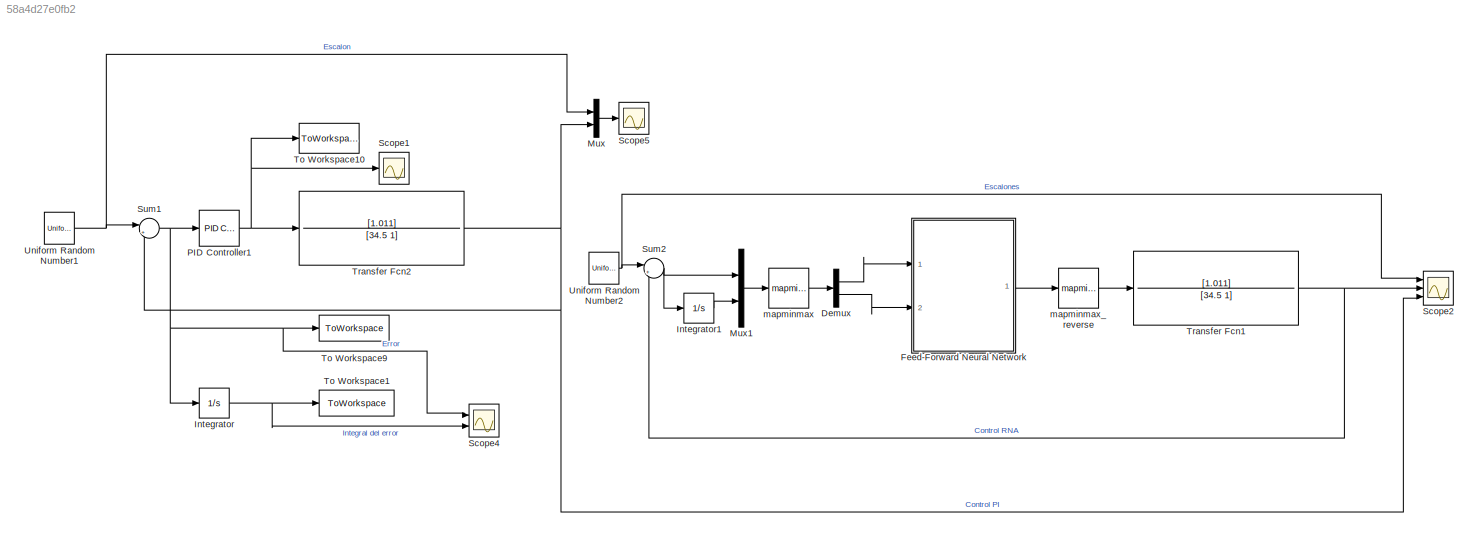
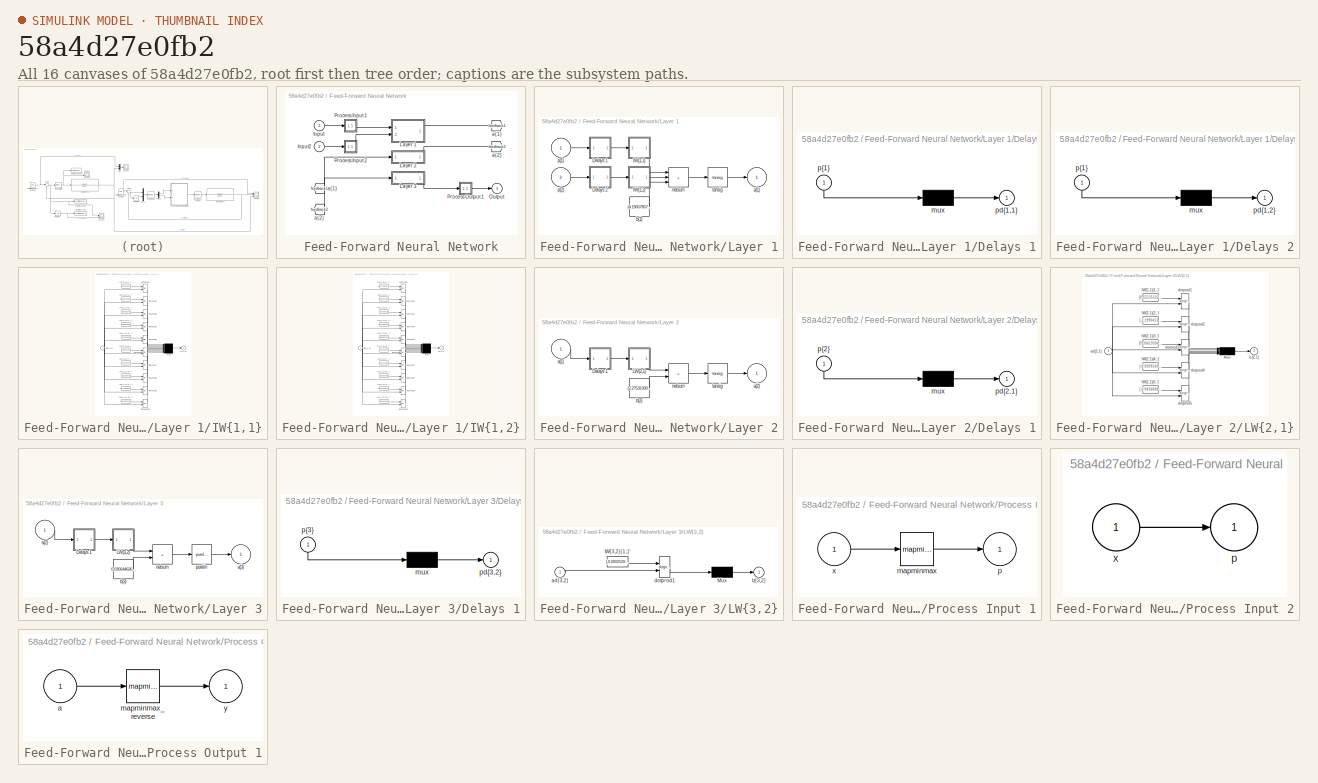
[diagram: thumbnail index - all 16 canvases of the model, root first then tree order]
MODEL slx_58a4d27e0fb2
KIND model
CONFIG AbsTol = auto
CONFIG EnableMultiTasking = off
CONFIG FixedStep = 0.1
CONFIG MaxStep = auto
CONFIG MinStep = auto
CONFIG RelTol = 1e-3
CONFIG SampleTimeConstraint = Unconstrained
CONFIG Solver = FixedStepAuto
CONFIG SolverName = FixedStepAuto
CONFIG StartTime = 0.0
CONFIG StopTime = 1000
BLOCK [Demux] Demux
  Outputs = 2
  Ports = [1, 2]
BLOCK [SubSystem] Feed-Forward Neural Network
  Ports = [2, 1]
  RequestExecContextInheritance = off
BLOCK [From] Feed-Forward Neural Network/ a{1} 
  GotoTag = feedback1
BLOCK [From] Feed-Forward Neural Network/ a{2} 
  GotoTag = feedback2
BLOCK [Inport] Feed-Forward Neural Network/Input
  PortDimensions = 1
BLOCK [Inport] Feed-Forward Neural Network/Input2
  Port = 2
  PortDimensions = 1
BLOCK [SubSystem] Feed-Forward Neural Network/Layer 1
  Ports = [2, 1]
  RequestExecContextInheritance = off
BLOCK [SubSystem] Feed-Forward Neural Network/Layer 1/Delays 1
  Ports = [1, 1]
  RequestExecContextInheritance = off
BLOCK [Mux] Feed-Forward Neural Network/Layer 1/Delays 1/mux
  Inputs = 1
  Ports = [1, 1]
BLOCK [Outport] Feed-Forward Neural Network/Layer 1/Delays 1/pd{1,1}
BLOCK [Inport] Feed-Forward Neural Network/Layer 1/Delays 1/p{1}
  NameLocation = left
  PortDimensions = 1
BLOCK [SubSystem] Feed-Forward Neural Network/Layer 1/Delays 2
  Ports = [1, 1]
  RequestExecContextInheritance = off
BLOCK [Mux] Feed-Forward Neural Network/Layer 1/Delays 2/mux
  Inputs = 1
  Ports = [1, 1]
BLOCK [Outport] Feed-Forward Neural Network/Layer 1/Delays 2/pd{1,2}
BLOCK [Inport] Feed-Forward Neural Network/Layer 1/Delays 2/p{1}
  NameLocation = left
  PortDimensions = 1
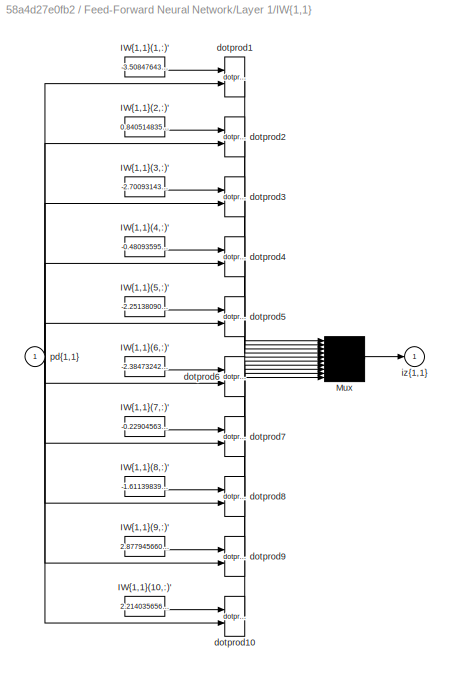
BLOCK [SubSystem] Feed-Forward Neural Network/Layer 1/IW{1,1}
  Ports = [1, 1]
  RequestExecContextInheritance = off
BLOCK [Constant] Feed-Forward Neural Network/Layer 1/IW{1,1}/IW{1,1}(1,:)'
  Value = -3.508476431920184435142573420307599008083343505859375
BLOCK [Constant] Feed-Forward Neural Network/Layer 1/IW{1,1}/IW{1,1}(10,:)'
  Value = 2.214035656119001327368778220261447131633758544921875
BLOCK [Constant] Feed-Forward Neural Network/Layer 1/IW{1,1}/IW{1,1}(2,:)'
  Value = 0.840514835862217868367451956146396696567535400390625
BLOCK [Constant] Feed-Forward Neural Network/Layer 1/IW{1,1}/IW{1,1}(3,:)'
  Value = -2.700931432801427778400693568983115255832672119140625
BLOCK [Constant] Feed-Forward Neural Network/Layer 1/IW{1,1}/IW{1,1}(4,:)'
  Value = -0.480935958631503901461456962351803667843341827392578125
BLOCK [Constant] Feed-Forward Neural Network/Layer 1/IW{1,1}/IW{1,1}(5,:)'
  Value = -2.2513809080687092745165500673465430736541748046875
BLOCK [Constant] Feed-Forward Neural Network/Layer 1/IW{1,1}/IW{1,1}(6,:)'
  Value = -2.384732421524343504160015072557143867015838623046875
BLOCK [Constant] Feed-Forward Neural Network/Layer 1/IW{1,1}/IW{1,1}(7,:)'
  Value = -0.229045639754693386436201762990094721317291259765625
BLOCK [Constant] Feed-Forward Neural Network/Layer 1/IW{1,1}/IW{1,1}(8,:)'
  Value = -1.6113983906326587725033050446654669940471649169921875
BLOCK [Constant] Feed-Forward Neural Network/Layer 1/IW{1,1}/IW{1,1}(9,:)'
  Value = 2.877945660692441176564670968218706548213958740234375
BLOCK [Mux] Feed-Forward Neural Network/Layer 1/IW{1,1}/Mux
  Inputs = 10
  Ports = [10, 1]
BLOCK [Reference] Feed-Forward Neural Network/Layer 1/IW{1,1}/dotprod1  REF=neural/Weight Functions/dotprod
  Ports = [2, 1]
  SourceBlock = neural/Weight Functions/dotprod
  SourceProductBaseCode = NN
  SourceType = DOTPROD
BLOCK [Reference] Feed-Forward Neural Network/Layer 1/IW{1,1}/dotprod10  REF=neural/Weight Functions/dotprod
  Ports = [2, 1]
  SourceBlock = neural/Weight Functions/dotprod
  SourceProductBaseCode = NN
  SourceType = DOTPROD
BLOCK [Reference] Feed-Forward Neural Network/Layer 1/IW{1,1}/dotprod2  REF=neural/Weight Functions/dotprod
  Ports = [2, 1]
  SourceBlock = neural/Weight Functions/dotprod
  SourceProductBaseCode = NN
  SourceType = DOTPROD
BLOCK [Reference] Feed-Forward Neural Network/Layer 1/IW{1,1}/dotprod3  REF=neural/Weight Functions/dotprod
  Ports = [2, 1]
  SourceBlock = neural/Weight Functions/dotprod
  SourceProductBaseCode = NN
  SourceType = DOTPROD
BLOCK [Reference] Feed-Forward Neural Network/Layer 1/IW{1,1}/dotprod4  REF=neural/Weight Functions/dotprod
  Ports = [2, 1]
  SourceBlock = neural/Weight Functions/dotprod
  SourceProductBaseCode = NN
  SourceType = DOTPROD
BLOCK [Reference] Feed-Forward Neural Network/Layer 1/IW{1,1}/dotprod5  REF=neural/Weight Functions/dotprod
  Ports = [2, 1]
  SourceBlock = neural/Weight Functions/dotprod
  SourceProductBaseCode = NN
  SourceType = DOTPROD
BLOCK [Reference] Feed-Forward Neural Network/Layer 1/IW{1,1}/dotprod6  REF=neural/Weight Functions/dotprod
  Ports = [2, 1]
  SourceBlock = neural/Weight Functions/dotprod
  SourceProductBaseCode = NN
  SourceType = DOTPROD
BLOCK [Reference] Feed-Forward Neural Network/Layer 1/IW{1,1}/dotprod7  REF=neural/Weight Functions/dotprod
  Ports = [2, 1]
  SourceBlock = neural/Weight Functions/dotprod
  SourceProductBaseCode = NN
  SourceType = DOTPROD
BLOCK [Reference] Feed-Forward Neural Network/Layer 1/IW{1,1}/dotprod8  REF=neural/Weight Functions/dotprod
  Ports = [2, 1]
  SourceBlock = neural/Weight Functions/dotprod
  SourceProductBaseCode = NN
  SourceType = DOTPROD
BLOCK [Reference] Feed-Forward Neural Network/Layer 1/IW{1,1}/dotprod9  REF=neural/Weight Functions/dotprod
  Ports = [2, 1]
  SourceBlock = neural/Weight Functions/dotprod
  SourceProductBaseCode = NN
  SourceType = DOTPROD
BLOCK [Outport] Feed-Forward Neural Network/Layer 1/IW{1,1}/iz{1,1}
BLOCK [Inport] Feed-Forward Neural Network/Layer 1/IW{1,1}/pd{1,1}
  PortDimensions = 1
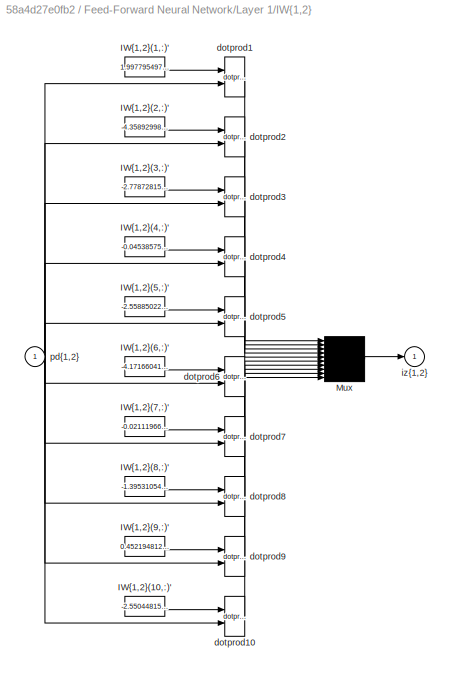
BLOCK [SubSystem] Feed-Forward Neural Network/Layer 1/IW{1,2}
  Ports = [1, 1]
  RequestExecContextInheritance = off
BLOCK [Constant] Feed-Forward Neural Network/Layer 1/IW{1,2}/IW{1,2}(1,:)'
  Value = 1.997795497339568182582070221542380750179290771484375
BLOCK [Constant] Feed-Forward Neural Network/Layer 1/IW{1,2}/IW{1,2}(10,:)'
  Value = -2.5504481515227350740815381868742406368255615234375
BLOCK [Constant] Feed-Forward Neural Network/Layer 1/IW{1,2}/IW{1,2}(2,:)'
  Value = -4.3589299896659330357806538813747465610504150390625
BLOCK [Constant] Feed-Forward Neural Network/Layer 1/IW{1,2}/IW{1,2}(3,:)'
  Value = -2.7787281516292097194309462793171405792236328125
BLOCK [Constant] Feed-Forward Neural Network/Layer 1/IW{1,2}/IW{1,2}(4,:)'
  Value = -0.045385756881579288057881882423316710628569126129150390625
BLOCK [Constant] Feed-Forward Neural Network/Layer 1/IW{1,2}/IW{1,2}(5,:)'
  Value = -2.558850221114818079826136454357765614986419677734375
BLOCK [Constant] Feed-Forward Neural Network/Layer 1/IW{1,2}/IW{1,2}(6,:)'
  Value = -4.17166041174047297346305640530772507190704345703125
BLOCK [Constant] Feed-Forward Neural Network/Layer 1/IW{1,2}/IW{1,2}(7,:)'
  Value = -0.02111966670555461000891028788828407414257526397705078125
BLOCK [Constant] Feed-Forward Neural Network/Layer 1/IW{1,2}/IW{1,2}(8,:)'
  Value = -1.39531054359343897885992191731929779052734375
BLOCK [Constant] Feed-Forward Neural Network/Layer 1/IW{1,2}/IW{1,2}(9,:)'
  Value = 0.45219481297372132733158878181711770594120025634765625
BLOCK [Mux] Feed-Forward Neural Network/Layer 1/IW{1,2}/Mux
  Inputs = 10
  Ports = [10, 1]
BLOCK [Reference] Feed-Forward Neural Network/Layer 1/IW{1,2}/dotprod1  REF=neural/Weight Functions/dotprod
  Ports = [2, 1]
  SourceBlock = neural/Weight Functions/dotprod
  SourceProductBaseCode = NN
  SourceType = DOTPROD
BLOCK [Reference] Feed-Forward Neural Network/Layer 1/IW{1,2}/dotprod10  REF=neural/Weight Functions/dotprod
  Ports = [2, 1]
  SourceBlock = neural/Weight Functions/dotprod
  SourceProductBaseCode = NN
  SourceType = DOTPROD
BLOCK [Reference] Feed-Forward Neural Network/Layer 1/IW{1,2}/dotprod2  REF=neural/Weight Functions/dotprod
  Ports = [2, 1]
  SourceBlock = neural/Weight Functions/dotprod
  SourceProductBaseCode = NN
  SourceType = DOTPROD
BLOCK [Reference] Feed-Forward Neural Network/Layer 1/IW{1,2}/dotprod3  REF=neural/Weight Functions/dotprod
  Ports = [2, 1]
  SourceBlock = neural/Weight Functions/dotprod
  SourceProductBaseCode = NN
  SourceType = DOTPROD
BLOCK [Reference] Feed-Forward Neural Network/Layer 1/IW{1,2}/dotprod4  REF=neural/Weight Functions/dotprod
  Ports = [2, 1]
  SourceBlock = neural/Weight Functions/dotprod
  SourceProductBaseCode = NN
  SourceType = DOTPROD
BLOCK [Reference] Feed-Forward Neural Network/Layer 1/IW{1,2}/dotprod5  REF=neural/Weight Functions/dotprod
  Ports = [2, 1]
  SourceBlock = neural/Weight Functions/dotprod
  SourceProductBaseCode = NN
  SourceType = DOTPROD
BLOCK [Reference] Feed-Forward Neural Network/Layer 1/IW{1,2}/dotprod6  REF=neural/Weight Functions/dotprod
  Ports = [2, 1]
  SourceBlock = neural/Weight Functions/dotprod
  SourceProductBaseCode = NN
  SourceType = DOTPROD
BLOCK [Reference] Feed-Forward Neural Network/Layer 1/IW{1,2}/dotprod7  REF=neural/Weight Functions/dotprod
  Ports = [2, 1]
  SourceBlock = neural/Weight Functions/dotprod
  SourceProductBaseCode = NN
  SourceType = DOTPROD
BLOCK [Reference] Feed-Forward Neural Network/Layer 1/IW{1,2}/dotprod8  REF=neural/Weight Functions/dotprod
  Ports = [2, 1]
  SourceBlock = neural/Weight Functions/dotprod
  SourceProductBaseCode = NN
  SourceType = DOTPROD
BLOCK [Reference] Feed-Forward Neural Network/Layer 1/IW{1,2}/dotprod9  REF=neural/Weight Functions/dotprod
  Ports = [2, 1]
  SourceBlock = neural/Weight Functions/dotprod
  SourceProductBaseCode = NN
  SourceType = DOTPROD
BLOCK [Outport] Feed-Forward Neural Network/Layer 1/IW{1,2}/iz{1,2}
BLOCK [Inport] Feed-Forward Neural Network/Layer 1/IW{1,2}/pd{1,2}
  PortDimensions = 1
BLOCK [Outport] Feed-Forward Neural Network/Layer 1/a{1}
  InitialOutput = [0;0;0;0;0;0;0;0;0;0]
BLOCK [Constant] Feed-Forward Neural Network/Layer 1/b{1}
  Value = [4.19057857569400571406958988518454134464263916015625;-3.972122577060976045260076716658659279346466064453125;1.7995169063904794537478437632671557366847991943359375;1.18502047244197594721981658949516713619232177734375;0.36150717514021846188398967569810338318347930908203125;1.1659574842138360484256054405705071985721588134765625;-0.894612116036243687489104559062980115413665771484375;-1.17155391073303...<+140ch>
BLOCK [Sum] Feed-Forward Neural Network/Layer 1/netsum
  IconShape = rectangular
  InputSameDT = on
  Inputs = 3
  OutDataTypeStr = Inherit: Same as first input
  Ports = [3, 1]
  SaturateOnIntegerOverflow = on
BLOCK [Inport] Feed-Forward Neural Network/Layer 1/p{1}
  PortDimensions = 1
BLOCK [Inport] Feed-Forward Neural Network/Layer 1/p{2}
  Port = 2
  PortDimensions = 1
BLOCK [Reference] Feed-Forward Neural Network/Layer 1/tansig  REF=neural/Transfer Functions/tansig
  Ports = [1, 1]
  SourceBlock = neural/Transfer Functions/tansig
  SourceProductBaseCode = NN
  SourceType = TANSIG
BLOCK [SubSystem] Feed-Forward Neural Network/Layer 2
  Ports = [1, 1]
  RequestExecContextInheritance = off
BLOCK [SubSystem] Feed-Forward Neural Network/Layer 2/Delays 1
  Ports = [1, 1]
  RequestExecContextInheritance = off
BLOCK [Mux] Feed-Forward Neural Network/Layer 2/Delays 1/mux
  Inputs = 1
  Ports = [1, 1]
BLOCK [Outport] Feed-Forward Neural Network/Layer 2/Delays 1/pd{2,1}
BLOCK [Inport] Feed-Forward Neural Network/Layer 2/Delays 1/p{2}
  NameLocation = left
  PortDimensions = 10
BLOCK [SubSystem] Feed-Forward Neural Network/Layer 2/LW{2,1}
  Ports = [1, 1]
  RequestExecContextInheritance = off
BLOCK [Constant] Feed-Forward Neural Network/Layer 2/LW{2,1}/IW{2,1}(1,:)'
  Value = [0.55535102160664495674069485176005400717258453369140625;0.45641645123717766718840493922471068799495697021484375;-0.5624661320449886314776222207001410424709320068359375;-1.540615594300232427116270628175698220729827880859375;-0.53292616971427253513837740683811716735363006591796875;-0.13573185617314720285975226943264715373516082763671875;-0.09423213574798443292745986354930209927260875701904296875;-0...<+169ch>
BLOCK [Constant] Feed-Forward Neural Network/Layer 2/LW{2,1}/IW{2,1}(2,:)'
  Value = [-1.1990451331347273811189779735286720097064971923828125;0.10131954551651085882912894930996117182075977325439453125;0.8767308311953498911606175170163623988628387451171875;-0.850169935927217235160924246883951127529144287109375;-0.177086098229539412596267311528208665549755096435546875;0.05391370620235093336081177994856261648237705230712890625;0.2878880787415105668713977138395421206951141357421875;-0...<+174ch>
BLOCK [Constant] Feed-Forward Neural Network/Layer 2/LW{2,1}/IW{2,1}(3,:)'
  Value = [0.304193947607173498237642661479185335338115692138671875;0.041681356855345581824412448668226716108620166778564453125;-0.242438945006539174897852717549540102481842041015625;-0.5456325700234800901711196274845860898494720458984375;-0.1841266608112542002562150855737854726612567901611328125;-0.0174890047951736689324508944309854996390640735626220703125;-0.38136603666054380568084525293670594692230224609...<+170ch>
BLOCK [Constant] Feed-Forward Neural Network/Layer 2/LW{2,1}/IW{2,1}(4,:)'
  Value = [-0.000954013024956334933397716913106023639556951820850372314453125;-2.32020243145966879676732330661792502723983488976955413818359375e-05;0.0002781869235858428781281437291994507177150808274745941162109375;-0.578706050110341596592888890882022678852081298828125;0.00018843804391659231436788324298703400927479378879070281982421875;4.22863407142418080107704181358485584496520459651947021484375e-05;-1.898...<+243ch>
BLOCK [Constant] Feed-Forward Neural Network/Layer 2/LW{2,1}/IW{2,1}(5,:)'
  Value = [-0.94368488313814291590375660234712995588779449462890625;0.0150610294496541126385569242529527400620281696319580078125;-0.71816348692667897335439874950679950416088104248046875;-0.07367612818496256654743348235570010729134082794189453125;-0.4379637747137572478806077924673445522785186767578125;-0.4332714878167671646025382869993336498737335205078125;0.80837872420107337312344952806597575545310974121093...<+180ch>
BLOCK [Mux] Feed-Forward Neural Network/Layer 2/LW{2,1}/Mux
  Inputs = 5
  Ports = [5, 1]
BLOCK [Inport] Feed-Forward Neural Network/Layer 2/LW{2,1}/ad{2,1}
  PortDimensions = 10
BLOCK [Reference] Feed-Forward Neural Network/Layer 2/LW{2,1}/dotprod1  REF=neural/Weight Functions/dotprod
  Ports = [2, 1]
  SourceBlock = neural/Weight Functions/dotprod
  SourceProductBaseCode = NN
  SourceType = DOTPROD
BLOCK [Reference] Feed-Forward Neural Network/Layer 2/LW{2,1}/dotprod2  REF=neural/Weight Functions/dotprod
  Ports = [2, 1]
  SourceBlock = neural/Weight Functions/dotprod
  SourceProductBaseCode = NN
  SourceType = DOTPROD
BLOCK [Reference] Feed-Forward Neural Network/Layer 2/LW{2,1}/dotprod3  REF=neural/Weight Functions/dotprod
  Ports = [2, 1]
  SourceBlock = neural/Weight Functions/dotprod
  SourceProductBaseCode = NN
  SourceType = DOTPROD
BLOCK [Reference] Feed-Forward Neural Network/Layer 2/LW{2,1}/dotprod4  REF=neural/Weight Functions/dotprod
  Ports = [2, 1]
  SourceBlock = neural/Weight Functions/dotprod
  SourceProductBaseCode = NN
  SourceType = DOTPROD
BLOCK [Reference] Feed-Forward Neural Network/Layer 2/LW{2,1}/dotprod5  REF=neural/Weight Functions/dotprod
  Ports = [2, 1]
  SourceBlock = neural/Weight Functions/dotprod
  SourceProductBaseCode = NN
  SourceType = DOTPROD
BLOCK [Outport] Feed-Forward Neural Network/Layer 2/LW{2,1}/lz{2,1}
BLOCK [Inport] Feed-Forward Neural Network/Layer 2/a{1} 
  PortDimensions = 10
BLOCK [Outport] Feed-Forward Neural Network/Layer 2/a{2}
  InitialOutput = [0;0;0;0;0]
BLOCK [Constant] Feed-Forward Neural Network/Layer 2/b{2}
  Value = [2.27531300371063505139090921147726476192474365234375;0.456862543232915474522570775661733932793140411376953125;0.445251593997662842294715801472193561494350433349609375;-0.8894085911825959644971817397163249552249908447265625;-1.90960584070917516186227658181451261043548583984375]
BLOCK [Sum] Feed-Forward Neural Network/Layer 2/netsum
  IconShape = rectangular
  InputSameDT = on
  Inputs = 2
  OutDataTypeStr = Inherit: Same as first input
  Ports = [2, 1]
  SaturateOnIntegerOverflow = on
BLOCK [Reference] Feed-Forward Neural Network/Layer 2/tansig  REF=neural/Transfer Functions/tansig
  Ports = [1, 1]
  SourceBlock = neural/Transfer Functions/tansig
  SourceProductBaseCode = NN
  SourceType = TANSIG
BLOCK [SubSystem] Feed-Forward Neural Network/Layer 3
  Ports = [1, 1]
  RequestExecContextInheritance = off
BLOCK [SubSystem] Feed-Forward Neural Network/Layer 3/Delays 1
  Ports = [1, 1]
  RequestExecContextInheritance = off
BLOCK [Mux] Feed-Forward Neural Network/Layer 3/Delays 1/mux
  Inputs = 1
  Ports = [1, 1]
BLOCK [Outport] Feed-Forward Neural Network/Layer 3/Delays 1/pd{3,2}
BLOCK [Inport] Feed-Forward Neural Network/Layer 3/Delays 1/p{3}
  NameLocation = left
  PortDimensions = 5
BLOCK [SubSystem] Feed-Forward Neural Network/Layer 3/LW{3,2}
  Ports = [1, 1]
  RequestExecContextInheritance = off
BLOCK [Constant] Feed-Forward Neural Network/Layer 3/LW{3,2}/IW{3,2}(1,:)'
  Value = [-0.0002529588510659234773698955667242671552230603992938995361328125;-0.001261397000539167707888754677014730987139046192169189453125;0.055966849843747022708040361749226576648652553558349609375;3.52836074955877876391241443343460559844970703125;0.0678782961544512064566703202217468060553073883056640625]
BLOCK [Mux] Feed-Forward Neural Network/Layer 3/LW{3,2}/Mux
  Inputs = 1
  Ports = [1, 1]
BLOCK [Inport] Feed-Forward Neural Network/Layer 3/LW{3,2}/ad{3,2}
  PortDimensions = 5
BLOCK [Reference] Feed-Forward Neural Network/Layer 3/LW{3,2}/dotprod1  REF=neural/Weight Functions/dotprod
  Ports = [2, 1]
  SourceBlock = neural/Weight Functions/dotprod
  SourceProductBaseCode = NN
  SourceType = DOTPROD
BLOCK [Outport] Feed-Forward Neural Network/Layer 3/LW{3,2}/lz{3,2}
BLOCK [Inport] Feed-Forward Neural Network/Layer 3/a{2} 
  PortDimensions = 5
BLOCK [Outport] Feed-Forward Neural Network/Layer 3/a{3}
  InitialOutput = 0
BLOCK [Constant] Feed-Forward Neural Network/Layer 3/b{3}
  Value = 0.030644626488173710987528153282255516387522220611572265625
BLOCK [Sum] Feed-Forward Neural Network/Layer 3/netsum
  IconShape = rectangular
  InputSameDT = on
  Inputs = 2
  OutDataTypeStr = Inherit: Same as first input
  Ports = [2, 1]
  SaturateOnIntegerOverflow = on
BLOCK [Reference] Feed-Forward Neural Network/Layer 3/purelin  REF=neural/Transfer Functions/purelin
  Ports = [1, 1]
  SourceBlock = neural/Transfer Functions/purelin
  SourceProductBaseCode = NN
  SourceType = PURELIN
BLOCK [Outport] Feed-Forward Neural Network/Output
  InitialOutput = 0
BLOCK [SubSystem] Feed-Forward Neural Network/Process Input 1
  Ports = [1, 1]
  RequestExecContextInheritance = off
BLOCK [Reference] Feed-Forward Neural Network/Process Input 1/mapminmax  REF=neural/Processing Functions/mapminmax
  Ports = [1, 1]
  SourceBlock = neural/Processing Functions/mapminmax
  SourceProductBaseCode = NN
  SourceType = MAPMINMAX Preprocess
BLOCK [Outport] Feed-Forward Neural Network/Process Input 1/p
  PortDimensions = 1
BLOCK [Inport] Feed-Forward Neural Network/Process Input 1/x
  PortDimensions = 1
BLOCK [SubSystem] Feed-Forward Neural Network/Process Input 2
  Ports = [1, 1]
  RequestExecContextInheritance = off
BLOCK [Outport] Feed-Forward Neural Network/Process Input 2/p
  PortDimensions = 1
BLOCK [Inport] Feed-Forward Neural Network/Process Input 2/x
  PortDimensions = 1
BLOCK [SubSystem] Feed-Forward Neural Network/Process Output 1
  Ports = [1, 1]
  RequestExecContextInheritance = off
BLOCK [Inport] Feed-Forward Neural Network/Process Output 1/a
  PortDimensions = 1
BLOCK [Reference] Feed-Forward Neural Network/Process Output 1/mapminmax_reverse  REF=neural/Processing Functions/mapminmax_reverse
  Ports = [1, 1]
  SourceBlock = neural/Processing Functions/mapminmax_reverse
  SourceProductBaseCode = NN
  SourceType = MAPMINMAX Reverse Process
BLOCK [Outport] Feed-Forward Neural Network/Process Output 1/y
  PortDimensions = 1
BLOCK [Goto] Feed-Forward Neural Network/a{1}
  GotoTag = feedback1
BLOCK [Goto] Feed-Forward Neural Network/a{2}
  GotoTag = feedback2
BLOCK [Integrator] Integrator
  Ports = [1, 1]
BLOCK [Integrator] Integrator1
  Ports = [1, 1]
BLOCK [Mux] Mux
  DisplayOption = bar
  Inputs = 2
  Ports = [2, 1]
BLOCK [Mux] Mux1
  DisplayOption = bar
  Inputs = 2
  Ports = [2, 1]
BLOCK [Reference] PID Controller1  REF=simulink/Continuous/PID Controller
  Ports = [1, 1]
  SourceBlock = simulink/Continuous/PID Controller
  SourceProductBaseCode = SL
  SourceType = PID 1dof
BLOCK [Scope] Scope1
  Floating = off
  NumInputPorts = 1
  Ports = [1]
  ScopeSpecificationString = Simulink.scopes.TimeScopeBlockCfg('CurrentConfiguration', extmgr.ConfigurationSet(extmgr.Configuration('Core','General UI',true),extmgr.Configuration('Core','Source UI',true),extmgr.Configuration('Sources','WiredSimulink',true,'DataLoggingVariableName','ScopeData2'),extmgr.Configuration('Visuals','Time Domain',true,'SerializedDisplays',{struct('MinYLimReal','-137.84663','MaxYLimReal','233.80539','...<+1403ch>
BLOCK [Scope] Scope2
  Floating = off
  NumInputPorts = 3
  Ports = [3]
  ScopeSpecificationString = Simulink.scopes.TimeScopeBlockCfg('CurrentConfiguration', extmgr.ConfigurationSet(extmgr.Configuration('Core','General UI',true),extmgr.Configuration('Core','Source UI',true),extmgr.Configuration('Sources','WiredSimulink',true,'DataLoggingVariableName','ScopeData3'),extmgr.Configuration('Visuals','Time Domain',true,'SerializedDisplays',{struct('MinYLimReal','-7.2399','MaxYLimReal','53.40615','YLab...<+1563ch>
BLOCK [Scope] Scope4
  Floating = off
  NumInputPorts = 2
  Ports = [2]
  ScopeSpecificationString = Simulink.scopes.TimeScopeBlockCfg('CurrentConfiguration', extmgr.ConfigurationSet(extmgr.Configuration('Core','General UI',true),extmgr.Configuration('Core','Source UI',true),extmgr.Configuration('Sources','WiredSimulink',true,'DataLoggingVariableName','ScopeData1'),extmgr.Configuration('Visuals','Time Domain',true,'SerializedDisplays',{struct('MinYLimReal','-47.36121','MaxYLimReal','44.37411','YL...<+1461ch>
BLOCK [Scope] Scope5
  Floating = off
  NumInputPorts = 1
  Ports = [1]
  ScopeSpecificationString = Simulink.scopes.TimeScopeBlockCfg('CurrentConfiguration', extmgr.ConfigurationSet(extmgr.Configuration('Core','General UI',true),extmgr.Configuration('Core','Source UI',true),extmgr.Configuration('Sources','WiredSimulink',true),extmgr.Configuration('Visuals','Time Domain',true,'SerializedDisplays',{struct('MinYLimReal','-5.81391','MaxYLimReal','55.8083','YLabelReal','','MinYLimMag','0.00000','MaxY...<+1434ch>
BLOCK [Sum] Sum1
  Inputs = |+-
  Ports = [2, 1]
BLOCK [Sum] Sum2
  Inputs = |+-
  Ports = [2, 1]
BLOCK [ToWorkspace] To Workspace1
  MaxDataPoints = inf
  Ports = [1]
  SampleTime = 0.1
  VariableName = Integral_e
BLOCK [ToWorkspace] To Workspace10
  MaxDataPoints = inf
  Ports = [1]
  SampleTime = 0.1
  VariableName = SalidaPI
BLOCK [ToWorkspace] To Workspace9
  MaxDataPoints = inf
  Ports = [1]
  SampleTime = 0.1
  VariableName = error_control
BLOCK [TransferFcn] Transfer Fcn1
  ContinuousStateAttributes = 'es'
  Denominator = [34.5 1]
  Numerator = [1.011]
BLOCK [TransferFcn] Transfer Fcn2
  ContinuousStateAttributes = 'es'
  Denominator = [34.5 1]
  Numerator = [1.011]
BLOCK [UniformRandomNumber] Uniform Random Number1
  Maximum = 50
  Minimum = 0
  SampleTime = 50
BLOCK [UniformRandomNumber] Uniform Random Number2
  Maximum = 50
  Minimum = 0
  SampleTime = 50
BLOCK [Reference] mapminmax  REF=neural/Processing Functions/mapminmax
  Ports = [1, 1]
  SourceBlock = neural/Processing Functions/mapminmax
  SourceProductBaseCode = NN
  SourceType = MAPMINMAX Preprocess
BLOCK [Reference] mapminmax_reverse  REF=neural/Processing Functions/mapminmax_reverse
  Ports = [1, 1]
  SourceBlock = neural/Processing Functions/mapminmax_reverse
  SourceProductBaseCode = NN
  SourceType = MAPMINMAX Reverse Process
LINE Demux:1 -> Feed-Forward Neural Network:1
LINE Demux:2 -> Feed-Forward Neural Network:2
LINE Feed-Forward Neural Network/ a{1} :1 -> Feed-Forward Neural Network/Layer 2:1
LINE Feed-Forward Neural Network/ a{2} :1 -> Feed-Forward Neural Network/Layer 3:1
LINE Feed-Forward Neural Network/Input2:1 -> Feed-Forward Neural Network/Process Input 2:1
LINE Feed-Forward Neural Network/Input:1 -> Feed-Forward Neural Network/Process Input 1:1
LINE Feed-Forward Neural Network/Layer 1/Delays 1/mux:1 -> Feed-Forward Neural Network/Layer 1/Delays 1/pd{1,1}:1
LINE Feed-Forward Neural Network/Layer 1/Delays 1/p{1}:1 -> Feed-Forward Neural Network/Layer 1/Delays 1/mux:1
LINE Feed-Forward Neural Network/Layer 1/Delays 1:1 -> Feed-Forward Neural Network/Layer 1/IW{1,1}:1
LINE Feed-Forward Neural Network/Layer 1/Delays 2/mux:1 -> Feed-Forward Neural Network/Layer 1/Delays 2/pd{1,2}:1
LINE Feed-Forward Neural Network/Layer 1/Delays 2/p{1}:1 -> Feed-Forward Neural Network/Layer 1/Delays 2/mux:1
LINE Feed-Forward Neural Network/Layer 1/Delays 2:1 -> Feed-Forward Neural Network/Layer 1/IW{1,2}:1
LINE Feed-Forward Neural Network/Layer 1/IW{1,1}/IW{1,1}(1,:)':1 -> Feed-Forward Neural Network/Layer 1/IW{1,1}/dotprod1:1
LINE Feed-Forward Neural Network/Layer 1/IW{1,1}/IW{1,1}(10,:)':1 -> Feed-Forward Neural Network/Layer 1/IW{1,1}/dotprod10:1
LINE Feed-Forward Neural Network/Layer 1/IW{1,1}/IW{1,1}(2,:)':1 -> Feed-Forward Neural Network/Layer 1/IW{1,1}/dotprod2:1
LINE Feed-Forward Neural Network/Layer 1/IW{1,1}/IW{1,1}(3,:)':1 -> Feed-Forward Neural Network/Layer 1/IW{1,1}/dotprod3:1
LINE Feed-Forward Neural Network/Layer 1/IW{1,1}/IW{1,1}(4,:)':1 -> Feed-Forward Neural Network/Layer 1/IW{1,1}/dotprod4:1
LINE Feed-Forward Neural Network/Layer 1/IW{1,1}/IW{1,1}(5,:)':1 -> Feed-Forward Neural Network/Layer 1/IW{1,1}/dotprod5:1
LINE Feed-Forward Neural Network/Layer 1/IW{1,1}/IW{1,1}(6,:)':1 -> Feed-Forward Neural Network/Layer 1/IW{1,1}/dotprod6:1
LINE Feed-Forward Neural Network/Layer 1/IW{1,1}/IW{1,1}(7,:)':1 -> Feed-Forward Neural Network/Layer 1/IW{1,1}/dotprod7:1
LINE Feed-Forward Neural Network/Layer 1/IW{1,1}/IW{1,1}(8,:)':1 -> Feed-Forward Neural Network/Layer 1/IW{1,1}/dotprod8:1
LINE Feed-Forward Neural Network/Layer 1/IW{1,1}/IW{1,1}(9,:)':1 -> Feed-Forward Neural Network/Layer 1/IW{1,1}/dotprod9:1
LINE Feed-Forward Neural Network/Layer 1/IW{1,1}/Mux:1 -> Feed-Forward Neural Network/Layer 1/IW{1,1}/iz{1,1}:1
LINE Feed-Forward Neural Network/Layer 1/IW{1,1}/dotprod10:1 -> Feed-Forward Neural Network/Layer 1/IW{1,1}/Mux:10
LINE Feed-Forward Neural Network/Layer 1/IW{1,1}/dotprod1:1 -> Feed-Forward Neural Network/Layer 1/IW{1,1}/Mux:1
LINE Feed-Forward Neural Network/Layer 1/IW{1,1}/dotprod2:1 -> Feed-Forward Neural Network/Layer 1/IW{1,1}/Mux:2
LINE Feed-Forward Neural Network/Layer 1/IW{1,1}/dotprod3:1 -> Feed-Forward Neural Network/Layer 1/IW{1,1}/Mux:3
LINE Feed-Forward Neural Network/Layer 1/IW{1,1}/dotprod4:1 -> Feed-Forward Neural Network/Layer 1/IW{1,1}/Mux:4
LINE Feed-Forward Neural Network/Layer 1/IW{1,1}/dotprod5:1 -> Feed-Forward Neural Network/Layer 1/IW{1,1}/Mux:5
LINE Feed-Forward Neural Network/Layer 1/IW{1,1}/dotprod6:1 -> Feed-Forward Neural Network/Layer 1/IW{1,1}/Mux:6
LINE Feed-Forward Neural Network/Layer 1/IW{1,1}/dotprod7:1 -> Feed-Forward Neural Network/Layer 1/IW{1,1}/Mux:7
LINE Feed-Forward Neural Network/Layer 1/IW{1,1}/dotprod8:1 -> Feed-Forward Neural Network/Layer 1/IW{1,1}/Mux:8
LINE Feed-Forward Neural Network/Layer 1/IW{1,1}/dotprod9:1 -> Feed-Forward Neural Network/Layer 1/IW{1,1}/Mux:9
NET Feed-Forward Neural Network/Layer 1/IW{1,1}/pd{1,1}:1 -> Feed-Forward Neural Network/Layer 1/IW{1,1}/dotprod10:2, Feed-Forward Neural Network/Layer 1/IW{1,1}/dotprod1:2, Feed-Forward Neural Network/Layer 1/IW{1,1}/dotprod2:2, Feed-Forward Neural Network/Layer 1/IW{1,1}/dotprod3:2, Feed-Forward Neural Network/Layer 1/IW{1,1}/dotprod4:2, Feed-Forward Neural Network/Layer 1/IW{1,1}/dotprod5:2, Feed-Forward Neural Network/Layer 1/IW{1,1}/dotprod6:2, Feed-Forward Neural Network/Layer 1/IW{1,1}/dotprod7:2, Feed-Forward Neural Network/Layer 1/IW{1,1}/dotprod8:2, Feed-Forward Neural Network/Layer 1/IW{1,1}/dotprod9:2
LINE Feed-Forward Neural Network/Layer 1/IW{1,1}:1 -> Feed-Forward Neural Network/Layer 1/netsum:1
LINE Feed-Forward Neural Network/Layer 1/IW{1,2}/IW{1,2}(1,:)':1 -> Feed-Forward Neural Network/Layer 1/IW{1,2}/dotprod1:1
LINE Feed-Forward Neural Network/Layer 1/IW{1,2}/IW{1,2}(10,:)':1 -> Feed-Forward Neural Network/Layer 1/IW{1,2}/dotprod10:1
LINE Feed-Forward Neural Network/Layer 1/IW{1,2}/IW{1,2}(2,:)':1 -> Feed-Forward Neural Network/Layer 1/IW{1,2}/dotprod2:1
LINE Feed-Forward Neural Network/Layer 1/IW{1,2}/IW{1,2}(3,:)':1 -> Feed-Forward Neural Network/Layer 1/IW{1,2}/dotprod3:1
LINE Feed-Forward Neural Network/Layer 1/IW{1,2}/IW{1,2}(4,:)':1 -> Feed-Forward Neural Network/Layer 1/IW{1,2}/dotprod4:1
LINE Feed-Forward Neural Network/Layer 1/IW{1,2}/IW{1,2}(5,:)':1 -> Feed-Forward Neural Network/Layer 1/IW{1,2}/dotprod5:1
LINE Feed-Forward Neural Network/Layer 1/IW{1,2}/IW{1,2}(6,:)':1 -> Feed-Forward Neural Network/Layer 1/IW{1,2}/dotprod6:1
LINE Feed-Forward Neural Network/Layer 1/IW{1,2}/IW{1,2}(7,:)':1 -> Feed-Forward Neural Network/Layer 1/IW{1,2}/dotprod7:1
LINE Feed-Forward Neural Network/Layer 1/IW{1,2}/IW{1,2}(8,:)':1 -> Feed-Forward Neural Network/Layer 1/IW{1,2}/dotprod8:1
LINE Feed-Forward Neural Network/Layer 1/IW{1,2}/IW{1,2}(9,:)':1 -> Feed-Forward Neural Network/Layer 1/IW{1,2}/dotprod9:1
LINE Feed-Forward Neural Network/Layer 1/IW{1,2}/Mux:1 -> Feed-Forward Neural Network/Layer 1/IW{1,2}/iz{1,2}:1
LINE Feed-Forward Neural Network/Layer 1/IW{1,2}/dotprod10:1 -> Feed-Forward Neural Network/Layer 1/IW{1,2}/Mux:10
LINE Feed-Forward Neural Network/Layer 1/IW{1,2}/dotprod1:1 -> Feed-Forward Neural Network/Layer 1/IW{1,2}/Mux:1
LINE Feed-Forward Neural Network/Layer 1/IW{1,2}/dotprod2:1 -> Feed-Forward Neural Network/Layer 1/IW{1,2}/Mux:2
LINE Feed-Forward Neural Network/Layer 1/IW{1,2}/dotprod3:1 -> Feed-Forward Neural Network/Layer 1/IW{1,2}/Mux:3
LINE Feed-Forward Neural Network/Layer 1/IW{1,2}/dotprod4:1 -> Feed-Forward Neural Network/Layer 1/IW{1,2}/Mux:4
LINE Feed-Forward Neural Network/Layer 1/IW{1,2}/dotprod5:1 -> Feed-Forward Neural Network/Layer 1/IW{1,2}/Mux:5
LINE Feed-Forward Neural Network/Layer 1/IW{1,2}/dotprod6:1 -> Feed-Forward Neural Network/Layer 1/IW{1,2}/Mux:6
LINE Feed-Forward Neural Network/Layer 1/IW{1,2}/dotprod7:1 -> Feed-Forward Neural Network/Layer 1/IW{1,2}/Mux:7
LINE Feed-Forward Neural Network/Layer 1/IW{1,2}/dotprod8:1 -> Feed-Forward Neural Network/Layer 1/IW{1,2}/Mux:8
LINE Feed-Forward Neural Network/Layer 1/IW{1,2}/dotprod9:1 -> Feed-Forward Neural Network/Layer 1/IW{1,2}/Mux:9
NET Feed-Forward Neural Network/Layer 1/IW{1,2}/pd{1,2}:1 -> Feed-Forward Neural Network/Layer 1/IW{1,2}/dotprod10:2, Feed-Forward Neural Network/Layer 1/IW{1,2}/dotprod1:2, Feed-Forward Neural Network/Layer 1/IW{1,2}/dotprod2:2, Feed-Forward Neural Network/Layer 1/IW{1,2}/dotprod3:2, Feed-Forward Neural Network/Layer 1/IW{1,2}/dotprod4:2, Feed-Forward Neural Network/Layer 1/IW{1,2}/dotprod5:2, Feed-Forward Neural Network/Layer 1/IW{1,2}/dotprod6:2, Feed-Forward Neural Network/Layer 1/IW{1,2}/dotprod7:2, Feed-Forward Neural Network/Layer 1/IW{1,2}/dotprod8:2, Feed-Forward Neural Network/Layer 1/IW{1,2}/dotprod9:2
LINE Feed-Forward Neural Network/Layer 1/IW{1,2}:1 -> Feed-Forward Neural Network/Layer 1/netsum:2
LINE Feed-Forward Neural Network/Layer 1/b{1}:1 -> Feed-Forward Neural Network/Layer 1/netsum:3
LINE Feed-Forward Neural Network/Layer 1/netsum:1 -> Feed-Forward Neural Network/Layer 1/tansig:1
LINE Feed-Forward Neural Network/Layer 1/p{1}:1 -> Feed-Forward Neural Network/Layer 1/Delays 1:1
LINE Feed-Forward Neural Network/Layer 1/p{2}:1 -> Feed-Forward Neural Network/Layer 1/Delays 2:1
LINE Feed-Forward Neural Network/Layer 1/tansig:1 -> Feed-Forward Neural Network/Layer 1/a{1}:1
LINE Feed-Forward Neural Network/Layer 1:1 -> Feed-Forward Neural Network/a{1}:1
LINE Feed-Forward Neural Network/Layer 2/Delays 1/mux:1 -> Feed-Forward Neural Network/Layer 2/Delays 1/pd{2,1}:1
LINE Feed-Forward Neural Network/Layer 2/Delays 1/p{2}:1 -> Feed-Forward Neural Network/Layer 2/Delays 1/mux:1
LINE Feed-Forward Neural Network/Layer 2/Delays 1:1 -> Feed-Forward Neural Network/Layer 2/LW{2,1}:1
LINE Feed-Forward Neural Network/Layer 2/LW{2,1}/IW{2,1}(1,:)':1 -> Feed-Forward Neural Network/Layer 2/LW{2,1}/dotprod1:1
LINE Feed-Forward Neural Network/Layer 2/LW{2,1}/IW{2,1}(2,:)':1 -> Feed-Forward Neural Network/Layer 2/LW{2,1}/dotprod2:1
LINE Feed-Forward Neural Network/Layer 2/LW{2,1}/IW{2,1}(3,:)':1 -> Feed-Forward Neural Network/Layer 2/LW{2,1}/dotprod3:1
LINE Feed-Forward Neural Network/Layer 2/LW{2,1}/IW{2,1}(4,:)':1 -> Feed-Forward Neural Network/Layer 2/LW{2,1}/dotprod4:1
LINE Feed-Forward Neural Network/Layer 2/LW{2,1}/IW{2,1}(5,:)':1 -> Feed-Forward Neural Network/Layer 2/LW{2,1}/dotprod5:1
LINE Feed-Forward Neural Network/Layer 2/LW{2,1}/Mux:1 -> Feed-Forward Neural Network/Layer 2/LW{2,1}/lz{2,1}:1
NET Feed-Forward Neural Network/Layer 2/LW{2,1}/ad{2,1}:1 -> Feed-Forward Neural Network/Layer 2/LW{2,1}/dotprod1:2, Feed-Forward Neural Network/Layer 2/LW{2,1}/dotprod2:2, Feed-Forward Neural Network/Layer 2/LW{2,1}/dotprod3:2, Feed-Forward Neural Network/Layer 2/LW{2,1}/dotprod4:2, Feed-Forward Neural Network/Layer 2/LW{2,1}/dotprod5:2
LINE Feed-Forward Neural Network/Layer 2/LW{2,1}/dotprod1:1 -> Feed-Forward Neural Network/Layer 2/LW{2,1}/Mux:1
LINE Feed-Forward Neural Network/Layer 2/LW{2,1}/dotprod2:1 -> Feed-Forward Neural Network/Layer 2/LW{2,1}/Mux:2
LINE Feed-Forward Neural Network/Layer 2/LW{2,1}/dotprod3:1 -> Feed-Forward Neural Network/Layer 2/LW{2,1}/Mux:3
LINE Feed-Forward Neural Network/Layer 2/LW{2,1}/dotprod4:1 -> Feed-Forward Neural Network/Layer 2/LW{2,1}/Mux:4
LINE Feed-Forward Neural Network/Layer 2/LW{2,1}/dotprod5:1 -> Feed-Forward Neural Network/Layer 2/LW{2,1}/Mux:5
LINE Feed-Forward Neural Network/Layer 2/LW{2,1}:1 -> Feed-Forward Neural Network/Layer 2/netsum:1
LINE Feed-Forward Neural Network/Layer 2/a{1} :1 -> Feed-Forward Neural Network/Layer 2/Delays 1:1
LINE Feed-Forward Neural Network/Layer 2/b{2}:1 -> Feed-Forward Neural Network/Layer 2/netsum:2
LINE Feed-Forward Neural Network/Layer 2/netsum:1 -> Feed-Forward Neural Network/Layer 2/tansig:1
LINE Feed-Forward Neural Network/Layer 2/tansig:1 -> Feed-Forward Neural Network/Layer 2/a{2}:1
LINE Feed-Forward Neural Network/Layer 2:1 -> Feed-Forward Neural Network/a{2}:1
LINE Feed-Forward Neural Network/Layer 3/Delays 1/mux:1 -> Feed-Forward Neural Network/Layer 3/Delays 1/pd{3,2}:1
LINE Feed-Forward Neural Network/Layer 3/Delays 1/p{3}:1 -> Feed-Forward Neural Network/Layer 3/Delays 1/mux:1
LINE Feed-Forward Neural Network/Layer 3/Delays 1:1 -> Feed-Forward Neural Network/Layer 3/LW{3,2}:1
LINE Feed-Forward Neural Network/Layer 3/LW{3,2}/IW{3,2}(1,:)':1 -> Feed-Forward Neural Network/Layer 3/LW{3,2}/dotprod1:1
LINE Feed-Forward Neural Network/Layer 3/LW{3,2}/Mux:1 -> Feed-Forward Neural Network/Layer 3/LW{3,2}/lz{3,2}:1
LINE Feed-Forward Neural Network/Layer 3/LW{3,2}/ad{3,2}:1 -> Feed-Forward Neural Network/Layer 3/LW{3,2}/dotprod1:2
LINE Feed-Forward Neural Network/Layer 3/LW{3,2}/dotprod1:1 -> Feed-Forward Neural Network/Layer 3/LW{3,2}/Mux:1
LINE Feed-Forward Neural Network/Layer 3/LW{3,2}:1 -> Feed-Forward Neural Network/Layer 3/netsum:1
LINE Feed-Forward Neural Network/Layer 3/a{2} :1 -> Feed-Forward Neural Network/Layer 3/Delays 1:1
LINE Feed-Forward Neural Network/Layer 3/b{3}:1 -> Feed-Forward Neural Network/Layer 3/netsum:2
LINE Feed-Forward Neural Network/Layer 3/netsum:1 -> Feed-Forward Neural Network/Layer 3/purelin:1
LINE Feed-Forward Neural Network/Layer 3/purelin:1 -> Feed-Forward Neural Network/Layer 3/a{3}:1
LINE Feed-Forward Neural Network/Layer 3:1 -> Feed-Forward Neural Network/Process Output 1:1
LINE Feed-Forward Neural Network/Process Input 1/mapminmax:1 -> Feed-Forward Neural Network/Process Input 1/p:1
LINE Feed-Forward Neural Network/Process Input 1/x:1 -> Feed-Forward Neural Network/Process Input 1/mapminmax:1
LINE Feed-Forward Neural Network/Process Input 1:1 -> Feed-Forward Neural Network/Layer 1:1
LINE Feed-Forward Neural Network/Process Input 2/x:1 -> Feed-Forward Neural Network/Process Input 2/p:1
LINE Feed-Forward Neural Network/Process Input 2:1 -> Feed-Forward Neural Network/Layer 1:2
LINE Feed-Forward Neural Network/Process Output 1/a:1 -> Feed-Forward Neural Network/Process Output 1/mapminmax_reverse:1
LINE Feed-Forward Neural Network/Process Output 1/mapminmax_reverse:1 -> Feed-Forward Neural Network/Process Output 1/y:1
LINE Feed-Forward Neural Network/Process Output 1:1 -> Feed-Forward Neural Network/Output:1
LINE Feed-Forward Neural Network:1 -> mapminmax_reverse:1
LINE Integrator1:1 -> Mux1:2
NET Integrator:1 -> Scope4:2, To Workspace1:1
LINE Mux1:1 -> mapminmax:1
LINE Mux:1 -> Scope5:1
NET PID Controller1:1 -> Scope1:1, To Workspace10:1, Transfer Fcn2:1
NET Sum1:1 -> Integrator:1, PID Controller1:1, Scope4:1, To Workspace9:1
NET Sum2:1 -> Integrator1:1, Mux1:1
NET Transfer Fcn1:1 -> Scope2:2, Sum2:2
NET Transfer Fcn2:1 -> Mux:2, Scope2:3, Sum1:2
NET Uniform Random Number1:1 -> Mux:1, Sum1:1
NET Uniform Random Number2:1 -> Scope2:1, Sum2:1
LINE mapminmax:1 -> Demux:1
LINE mapminmax_reverse:1 -> Transfer Fcn1:1
note: NET lines group one-source signal fan-out (src -> all destinations, sorted); 1:1 wires keep LINE
